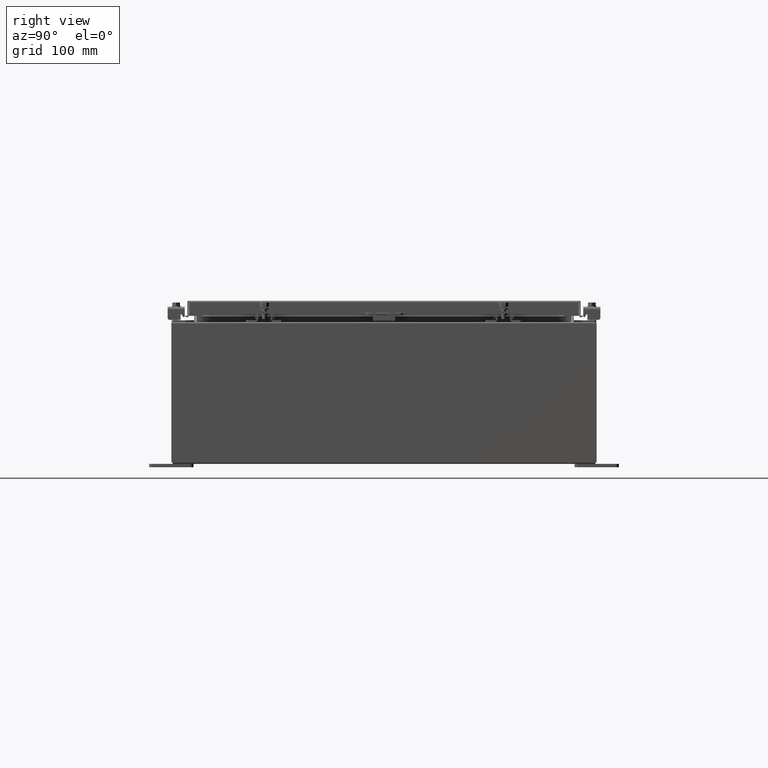
[diagram: clean part render]
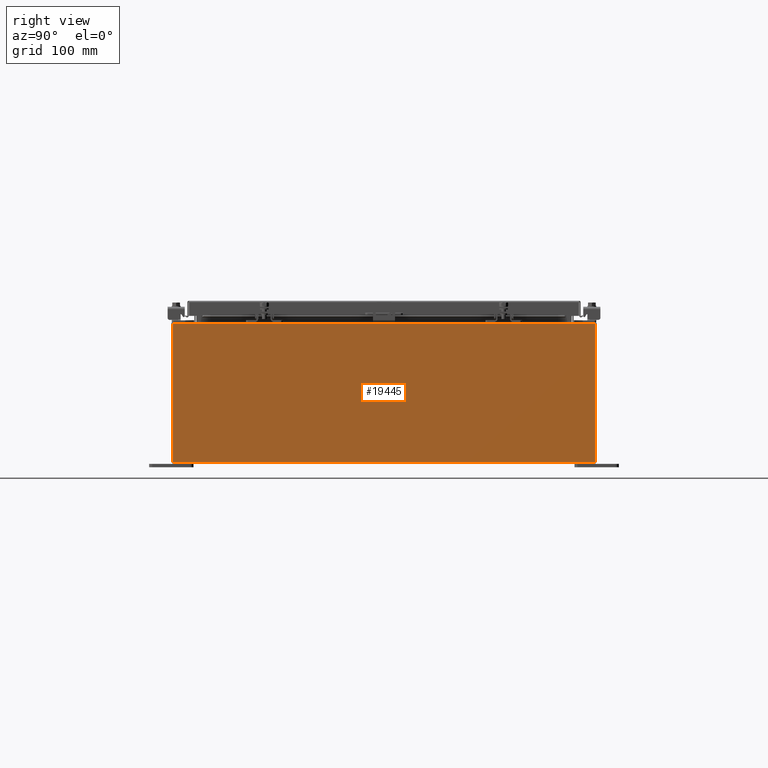
[diagram: same view with one face highlighted and labeled with its STEP entity id]
A machine part, right view. The second image highlights one B-rep face of the part: STEP entity #19445.
In plain terms, the highlighted planar face has unit normal (-1, 0, 0).
Its self-contained STEP definition (entity closure, byte-faithful):
#344 = VERTEX_POINT ( 'NONE', #1588 ) ;
#1588 = CARTESIAN_POINT ( 'NONE',  ( 15.00000000000000000, 11.92529999999999600, 0.01299999999999984700 ) ) ;
#2664 = CARTESIAN_POINT ( 'NONE',  ( 15.00000000000002800, -11.92530000000000400, 7.837599999999998300 ) ) ;
#3061 = CARTESIAN_POINT ( 'NONE',  ( 15.00000000000000000, -11.92530000000000400, 0.01299999999999983600 ) ) ;
#5752 = VECTOR ( 'NONE', #21418, 39.37007874015748100 ) ;
#5905 = VERTEX_POINT ( 'NONE', #20175 ) ;
#6566 = VECTOR ( 'NONE', #12886, 39.37007874015748100 ) ;
#7284 = LINE ( 'NONE', #18893, #5752 ) ;
#7481 = DIRECTION ( 'NONE',  ( -1.000000000000000000, 0.0000000000000000000, 3.584876173029202900E-015 ) ) ;
#8328 = ORIENTED_EDGE ( 'NONE', *, *, #27963, .F. ) ;
#9514 = VERTEX_POINT ( 'NONE', #3061 ) ;
#9761 = EDGE_LOOP ( 'NONE', ( #23908, #12268, #8328, #28171 ) ) ;
#10255 = CARTESIAN_POINT ( 'NONE',  ( 15.00000000000000000, -11.92530000000000400, -5.403395625144962700E-014 ) ) ;
#11622 = FACE_OUTER_BOUND ( 'NONE', #9761, .T. ) ;
#12186 = CARTESIAN_POINT ( 'NONE',  ( 15.00000000000000000, -11.92530000000000400, 0.01299999999999984700 ) ) ;
#12268 = ORIENTED_EDGE ( 'NONE', *, *, #16802, .T. ) ;
#12886 = DIRECTION ( 'NONE',  ( -3.584876173029202900E-015, 0.0000000000000000000, -1.000000000000000000 ) ) ;
#13915 = DIRECTION ( 'NONE',  ( 3.584876173029202900E-015, 0.0000000000000000000, 1.000000000000000000 ) ) ;
#15095 = PLANE ( 'NONE',  #17390 ) ;
#16802 = EDGE_CURVE ( 'NONE', #23516, #9514, #26814, .T. ) ;
#17390 = AXIS2_PLACEMENT_3D ( 'NONE', #30282, #7481, #25220 ) ;
#18278 = VECTOR ( 'NONE', #13915, 39.37007874015748100 ) ;
#18349 = LINE ( 'NONE', #12186, #19159 ) ;
#18473 = EDGE_CURVE ( 'NONE', #5905, #23516, #7284, .T. ) ;
#18893 = CARTESIAN_POINT ( 'NONE',  ( 15.00000000000003200, 11.92529999999999800, 7.837599999999992100 ) ) ;
#19159 = VECTOR ( 'NONE', #27374, 39.37007874015748100 ) ;
#19445 = ADVANCED_FACE ( 'NONE', ( #11622 ), #15095, .F. ) ;
#20175 = CARTESIAN_POINT ( 'NONE',  ( 15.00000000000003200, 11.92529999999999600, 7.837599999999992100 ) ) ;
#21418 = DIRECTION ( 'NONE',  ( -0.0000000000000000000, -1.000000000000000000, -0.0000000000000000000 ) ) ;
#23516 = VERTEX_POINT ( 'NONE', #2664 ) ;
#23908 = ORIENTED_EDGE ( 'NONE', *, *, #18473, .T. ) ;
#25220 = DIRECTION ( 'NONE',  ( 3.584876173029202900E-015, 0.0000000000000000000, 1.000000000000000000 ) ) ;
#26814 = LINE ( 'NONE', #10255, #6566 ) ;
#27374 = DIRECTION ( 'NONE',  ( -0.0000000000000000000, -1.000000000000000000, -0.0000000000000000000 ) ) ;
#27963 = EDGE_CURVE ( 'NONE', #344, #9514, #18349, .T. ) ;
#28171 = ORIENTED_EDGE ( 'NONE', *, *, #28768, .T. ) ;
#28768 = EDGE_CURVE ( 'NONE', #344, #5905, #31053, .T. ) ;
#29075 = CARTESIAN_POINT ( 'NONE',  ( 15.00000000000000000, 11.92529999999999800, -5.403395625144962700E-014 ) ) ;
#30282 = CARTESIAN_POINT ( 'NONE',  ( 15.00000000000000000, 0.0000000000000000000, -5.403395625144962700E-014 ) ) ;
#31053 = LINE ( 'NONE', #29075, #18278 ) ;